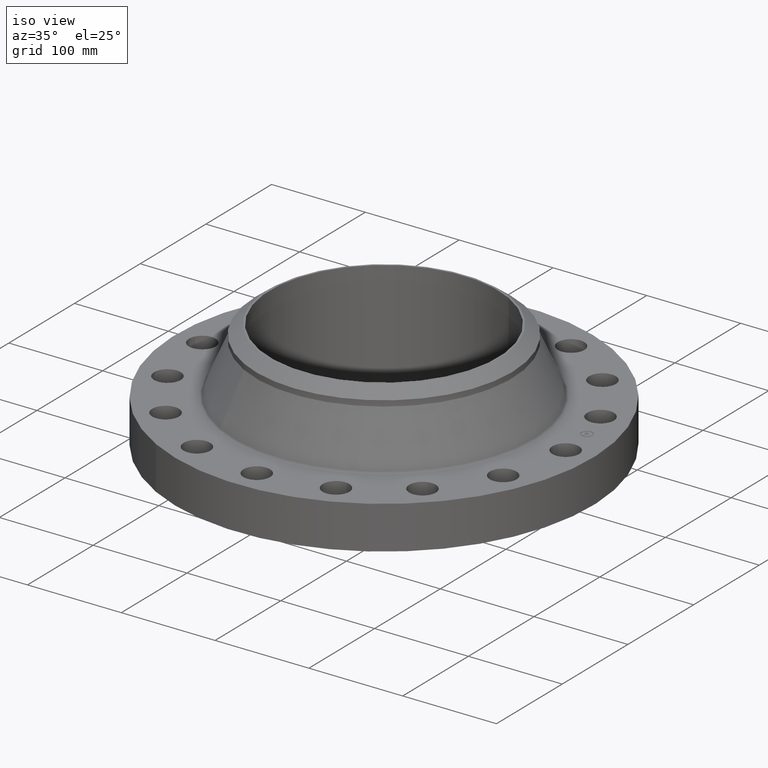
[diagram: clean part render]
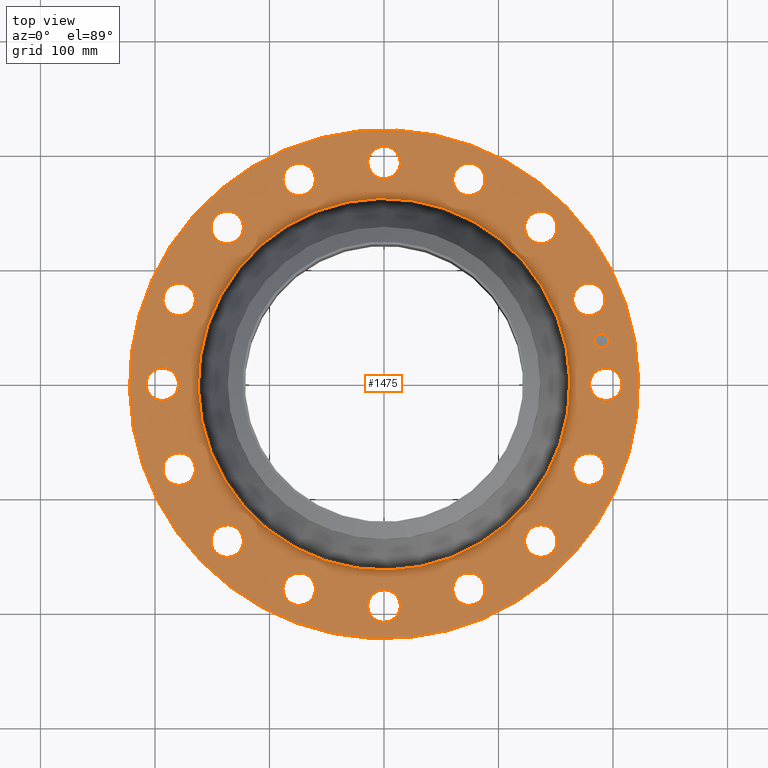
[diagram: tour spotlight — one face highlighted and labeled with its STEP entity id]
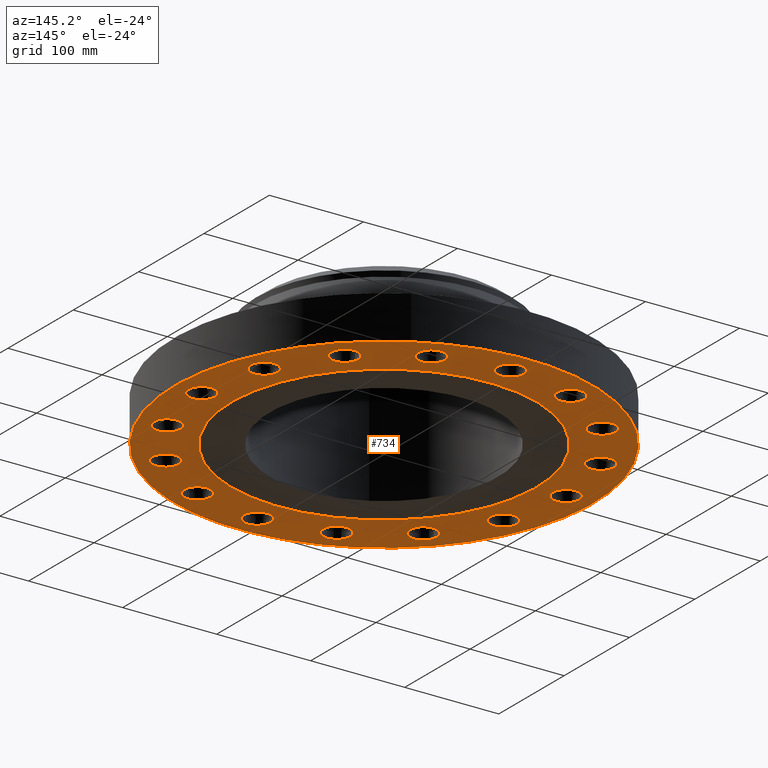
[diagram: tour spotlight — one face highlighted and labeled with its STEP entity id]
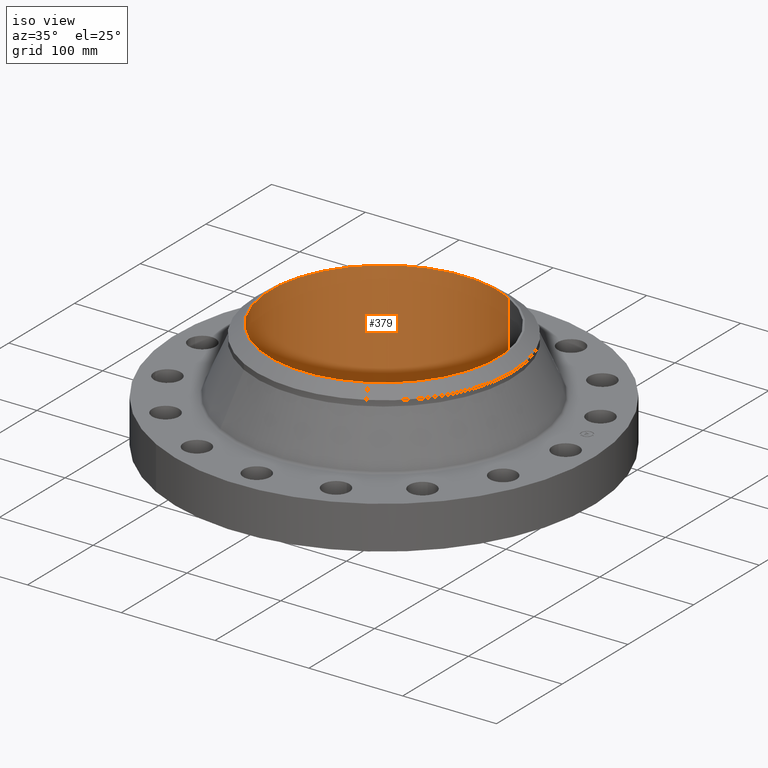
[diagram: tour spotlight — one face highlighted and labeled with its STEP entity id]
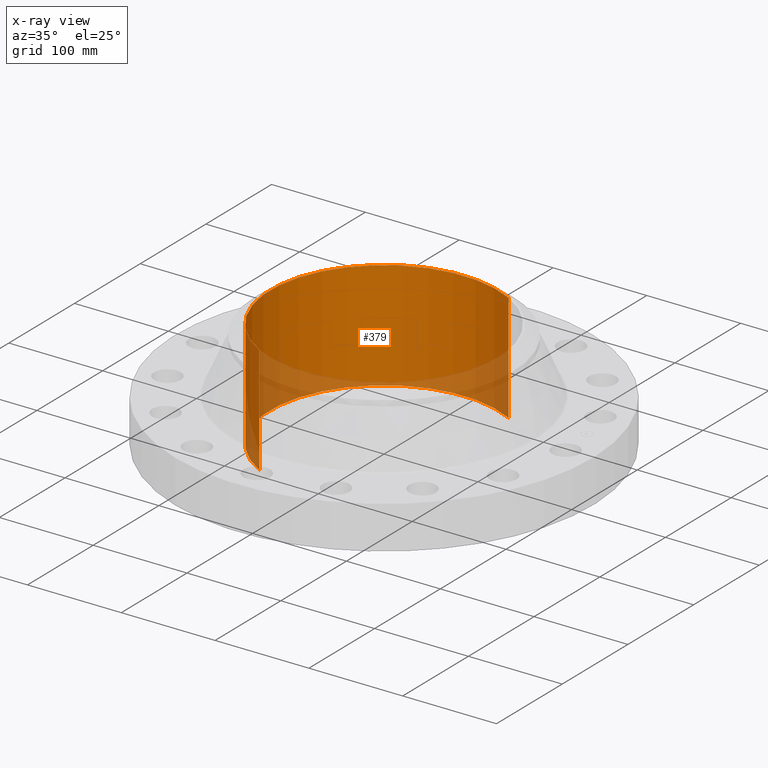
[diagram: x-ray of the same camera — body ghosted, this tour face saturated]
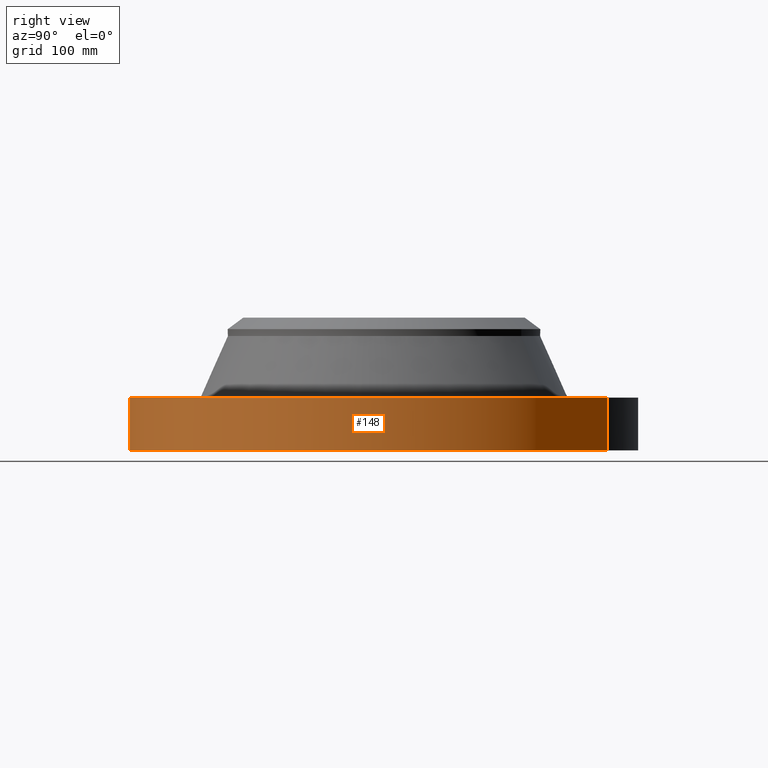
[diagram: tour spotlight — one face highlighted and labeled with its STEP entity id]
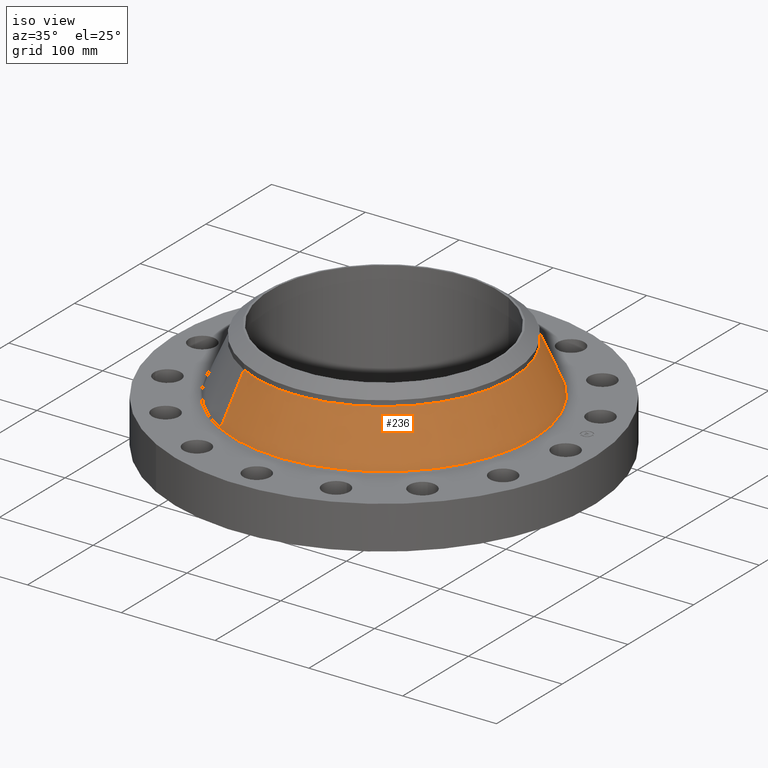
[diagram: tour spotlight — one face highlighted and labeled with its STEP entity id]
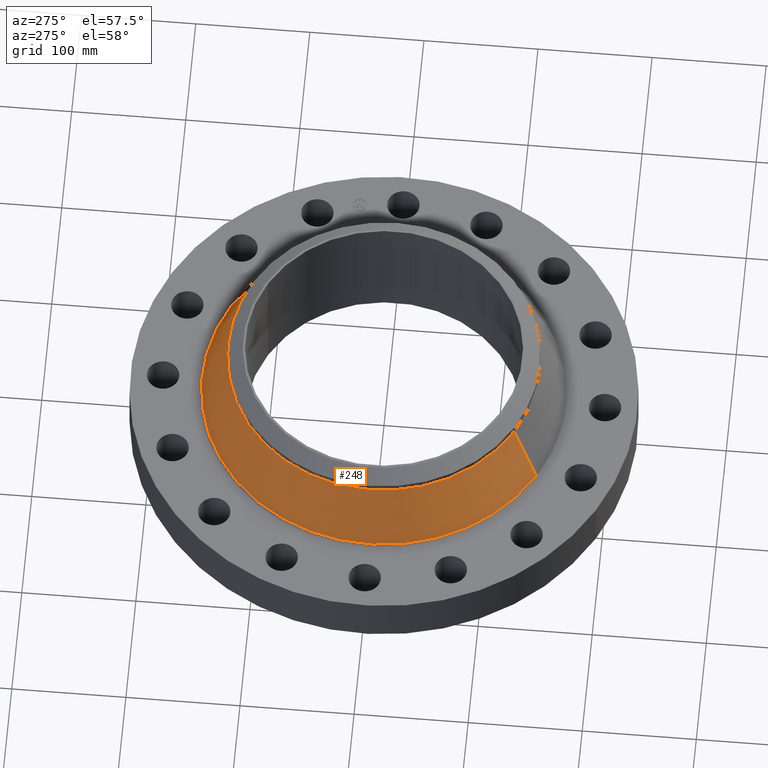
[diagram: tour spotlight — one face highlighted and labeled with its STEP entity id]
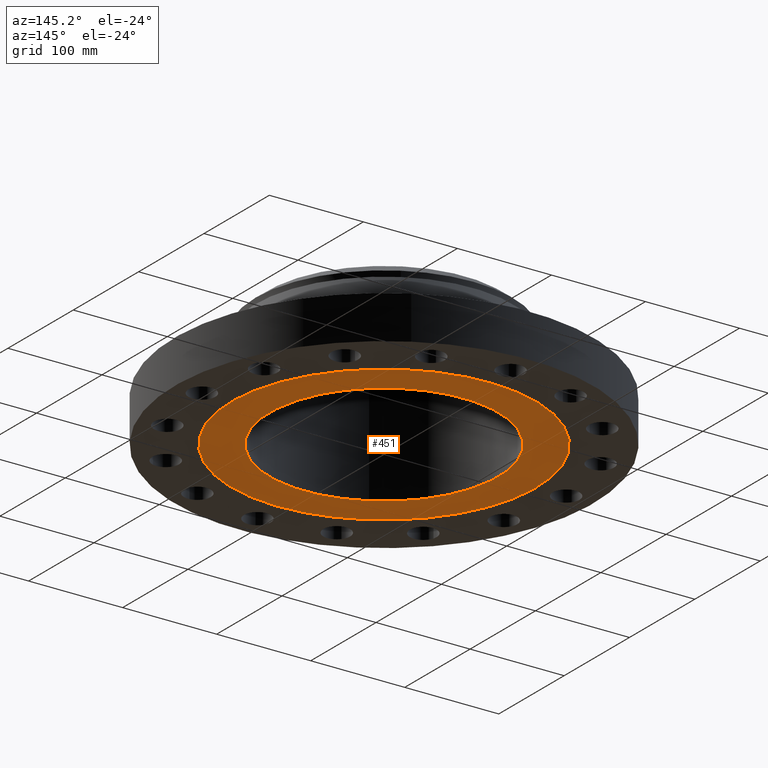
[diagram: tour spotlight — one face highlighted and labeled with its STEP entity id]
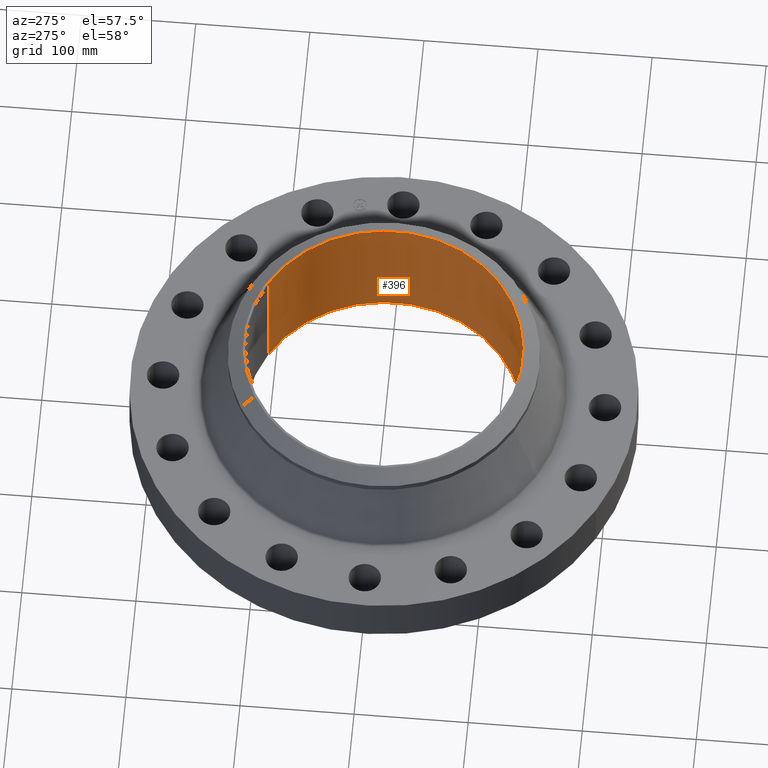
[diagram: tour spotlight — one face highlighted and labeled with its STEP entity id]
A machine part: a face-by-face anatomy tour. The part has 433 B-rep faces; the first image is the clean iso view, then the 8 largest visible faces are spotlighted one at a time (largest first), each with its STEP entity span.

Face 1 — top view, entity #1475. In plain terms, the highlighted planar face has unit normal (0, 0, -1).
Definition (entity closure, byte-faithful):
#65=AXIS2_PLACEMENT_3D('Circle Axis2P3D',#63,#64,$) ;
#82=AXIS2_PLACEMENT_3D('Circle Axis2P3D',#80,#81,$) ;
#115=AXIS2_PLACEMENT_3D('Circle Axis2P3D',#113,#114,$) ;
#139=AXIS2_PLACEMENT_3D('Circle Axis2P3D',#137,#138,$) ;
#156=AXIS2_PLACEMENT_3D('Circle Axis2P3D',#154,#155,$) ;
#191=AXIS2_PLACEMENT_3D('Circle Axis2P3D',#189,#190,$) ;
#756=AXIS2_PLACEMENT_3D('Circle Axis2P3D',#754,#755,$) ;
#768=AXIS2_PLACEMENT_3D('Circle Axis2P3D',#766,#767,$) ;
#799=AXIS2_PLACEMENT_3D('Circle Axis2P3D',#797,#798,$) ;
#811=AXIS2_PLACEMENT_3D('Circle Axis2P3D',#809,#810,$) ;
#842=AXIS2_PLACEMENT_3D('Circle Axis2P3D',#840,#841,$) ;
#854=AXIS2_PLACEMENT_3D('Circle Axis2P3D',#852,#853,$) ;
#885=AXIS2_PLACEMENT_3D('Circle Axis2P3D',#883,#884,$) ;
#897=AXIS2_PLACEMENT_3D('Circle Axis2P3D',#895,#896,$) ;
#928=AXIS2_PLACEMENT_3D('Circle Axis2P3D',#926,#927,$) ;
#940=AXIS2_PLACEMENT_3D('Circle Axis2P3D',#938,#939,$) ;
#971=AXIS2_PLACEMENT_3D('Circle Axis2P3D',#969,#970,$) ;
#983=AXIS2_PLACEMENT_3D('Circle Axis2P3D',#981,#982,$) ;
#1014=AXIS2_PLACEMENT_3D('Circle Axis2P3D',#1012,#1013,$) ;
#1026=AXIS2_PLACEMENT_3D('Circle Axis2P3D',#1024,#1025,$) ;
#1057=AXIS2_PLACEMENT_3D('Circle Axis2P3D',#1055,#1056,$) ;
#1069=AXIS2_PLACEMENT_3D('Circle Axis2P3D',#1067,#1068,$) ;
#1100=AXIS2_PLACEMENT_3D('Circle Axis2P3D',#1098,#1099,$) ;
#1112=AXIS2_PLACEMENT_3D('Circle Axis2P3D',#1110,#1111,$) ;
#1143=AXIS2_PLACEMENT_3D('Circle Axis2P3D',#1141,#1142,$) ;
#1155=AXIS2_PLACEMENT_3D('Circle Axis2P3D',#1153,#1154,$) ;
#1186=AXIS2_PLACEMENT_3D('Circle Axis2P3D',#1184,#1185,$) ;
#1198=AXIS2_PLACEMENT_3D('Circle Axis2P3D',#1196,#1197,$) ;
#1229=AXIS2_PLACEMENT_3D('Circle Axis2P3D',#1227,#1228,$) ;
#1241=AXIS2_PLACEMENT_3D('Circle Axis2P3D',#1239,#1240,$) ;
#1272=AXIS2_PLACEMENT_3D('Circle Axis2P3D',#1270,#1271,$) ;
#1284=AXIS2_PLACEMENT_3D('Circle Axis2P3D',#1282,#1283,$) ;
#1315=AXIS2_PLACEMENT_3D('Circle Axis2P3D',#1313,#1314,$) ;
#1327=AXIS2_PLACEMENT_3D('Circle Axis2P3D',#1325,#1326,$) ;
#1358=AXIS2_PLACEMENT_3D('Circle Axis2P3D',#1356,#1357,$) ;
#1370=AXIS2_PLACEMENT_3D('Circle Axis2P3D',#1368,#1369,$) ;
#1383=AXIS2_PLACEMENT_3D('Plane Axis2P3D',#1380,#1381,#1382) ;
#1459=AXIS2_PLACEMENT_3D('Circle Axis2P3D',#1457,#1458,$) ;
#1468=AXIS2_PLACEMENT_3D('Circle Axis2P3D',#1466,#1467,$) ;
#46=CARTESIAN_POINT('Vertex',(7.13355376537,0.268478301619,1.81000000001)) ;
#60=CARTESIAN_POINT('Vertex',(8.11644623469,-0.268478301619,1.81000000001)) ;
#63=CARTESIAN_POINT('Axis2P3D Location',(7.62500000003,0.,1.81000000001)) ;
#80=CARTESIAN_POINT('Axis2P3D Location',(7.62500000003,0.,1.81000000001)) ;
#110=CARTESIAN_POINT('Vertex',(-4.1949734628,-7.67884741657,1.81000000001)) ;
#113=CARTESIAN_POINT('Axis2P3D Location',(0.,0.,1.81000000001)) ;
#117=CARTESIAN_POINT('Vertex',(4.1949734628,7.67884741657,1.81000000001)) ;
#137=CARTESIAN_POINT('Axis2P3D Location',(0.,0.,1.81000000001)) ;
#154=CARTESIAN_POINT('Axis2P3D Location',(0.,0.,1.81000000001)) ;
#158=CARTESIAN_POINT('Vertex',(3.06266830609,5.60617672997,1.81000000001)) ;
#160=CARTESIAN_POINT('Vertex',(-3.06266830609,-5.60617672997,1.81000000001)) ;
#189=CARTESIAN_POINT('Axis2P3D Location',(0.,0.,1.81000000001)) ;
#744=CARTESIAN_POINT('Vertex',(-6.69328651587,2.4818512321,1.81000000001)) ;
#751=CARTESIAN_POINT('Vertex',(-7.39587635498,3.35407111149,1.81000000001)) ;
#754=CARTESIAN_POINT('Axis2P3D Location',(-7.04458143543,2.9179611718,1.81000000001)) ;
#766=CARTESIAN_POINT('Axis2P3D Location',(-7.04458143543,2.9179611718,1.81000000001)) ;
#787=CARTESIAN_POINT('Vertex',(5.23402706913,-4.85434141378,1.81000000001)) ;
#794=CARTESIAN_POINT('Vertex',(5.54935134401,-5.92903699936,1.81000000001)) ;
#797=CARTESIAN_POINT('Axis2P3D Location',(5.39168920657,-5.39168920657,1.81000000001)) ;
#809=CARTESIAN_POINT('Axis2P3D Location',(5.39168920657,-5.39168920657,1.81000000001)) ;
#830=CARTESIAN_POINT('Vertex',(-5.23402706913,4.85434141378,1.81000000001)) ;
#837=CARTESIAN_POINT('Vertex',(-5.54935134401,5.92903699936,1.81000000001)) ;
#840=CARTESIAN_POINT('Axis2P3D Location',(-5.39168920657,5.39168920657,1.81000000001)) ;
#852=CARTESIAN_POINT('Axis2P3D Location',(-5.39168920657,5.39168920657,1.81000000001)) ;
#873=CARTESIAN_POINT('Vertex',(2.97793444768,-6.48780211991,1.81000000001)) ;
#880=CARTESIAN_POINT('Vertex',(2.85798789591,-7.60136075094,1.81000000001)) ;
#883=CARTESIAN_POINT('Axis2P3D Location',(2.9179611718,-7.04458143543,1.81000000001)) ;
#895=CARTESIAN_POINT('Axis2P3D Location',(2.9179611718,-7.04458143543,1.81000000001)) ;
#916=CARTESIAN_POINT('Vertex',(-2.97793444768,6.48780211991,1.81000000001)) ;
#923=CARTESIAN_POINT('Vertex',(-2.85798789591,7.60136075094,1.81000000001)) ;
#926=CARTESIAN_POINT('Axis2P3D Location',(-2.9179611718,7.04458143543,1.81000000001)) ;
#938=CARTESIAN_POINT('Axis2P3D Location',(-2.9179611718,7.04458143543,1.81000000001)) ;
#959=CARTESIAN_POINT('Vertex',(0.268478301619,-7.13355376537,1.81000000001)) ;
#966=CARTESIAN_POINT('Vertex',(-0.268478301619,-8.11644623469,1.81000000001)) ;
#969=CARTESIAN_POINT('Axis2P3D Location',(-6.52068346028E-016,-7.62500000003,1.81000000001)) ;
#981=CARTESIAN_POINT('Axis2P3D Location',(-6.52068346028E-016,-7.62500000003,1.81000000001)) ;
#1002=CARTESIAN_POINT('Vertex',(-0.268478301619,7.13355376537,1.81000000001)) ;
#1009=CARTESIAN_POINT('Vertex',(0.268478301619,8.11644623469,1.81000000001)) ;
#1012=CARTESIAN_POINT('Axis2P3D Location',(-2.81724838326E-016,7.62500000003,1.81000000001)) ;
#1024=CARTESIAN_POINT('Axis2P3D Location',(-2.81724838326E-016,7.62500000003,1.81000000001)) ;
#1045=CARTESIAN_POINT('Vertex',(-2.4818512321,-6.69328651587,1.81000000001)) ;
#1052=CARTESIAN_POINT('Vertex',(-3.35407111149,-7.39587635498,1.81000000001)) ;
#1055=CARTESIAN_POINT('Axis2P3D Location',(-2.9179611718,-7.04458143543,1.81000000001)) ;
#1067=CARTESIAN_POINT('Axis2P3D Location',(-2.9179611718,-7.04458143543,1.81000000001)) ;
#1088=CARTESIAN_POINT('Vertex',(2.4818512321,6.69328651587,1.81000000001)) ;
#1095=CARTESIAN_POINT('Vertex',(3.35407111149,7.39587635498,1.81000000001)) ;
#1098=CARTESIAN_POINT('Axis2P3D Location',(2.9179611718,7.04458143543,1.81000000001)) ;
#1110=CARTESIAN_POINT('Axis2P3D Location',(2.9179611718,7.04458143543,1.81000000001)) ;
#1131=CARTESIAN_POINT('Vertex',(-4.85434141378,-5.23402706913,1.81000000001)) ;
#1138=CARTESIAN_POINT('Vertex',(-5.92903699936,-5.54935134401,1.81000000001)) ;
#1141=CARTESIAN_POINT('Axis2P3D Location',(-5.39168920657,-5.39168920657,1.81000000001)) ;
#1153=CARTESIAN_POINT('Axis2P3D Location',(-5.39168920657,-5.39168920657,1.81000000001)) ;
#1174=CARTESIAN_POINT('Vertex',(4.85434141378,5.23402706913,1.81000000001)) ;
#1181=CARTESIAN_POINT('Vertex',(5.92903699936,5.54935134401,1.81000000001)) ;
#1184=CARTESIAN_POINT('Axis2P3D Location',(5.39168920657,5.39168920657,1.81000000001)) ;
#1196=CARTESIAN_POINT('Axis2P3D Location',(5.39168920657,5.39168920657,1.81000000001)) ;
#1217=CARTESIAN_POINT('Vertex',(-6.48780211991,-2.97793444768,1.81000000001)) ;
#1224=CARTESIAN_POINT('Vertex',(-7.60136075094,-2.85798789591,1.81000000001)) ;
#1227=CARTESIAN_POINT('Axis2P3D Location',(-7.04458143543,-2.9179611718,1.81000000001)) ;
#1239=CARTESIAN_POINT('Axis2P3D Location',(-7.04458143543,-2.9179611718,1.81000000001)) ;
#1260=CARTESIAN_POINT('Vertex',(6.48780211991,2.97793444768,1.81000000001)) ;
#1267=CARTESIAN_POINT('Vertex',(7.60136075094,2.85798789591,1.81000000001)) ;
#1270=CARTESIAN_POINT('Axis2P3D Location',(7.04458143543,2.9179611718,1.81000000001)) ;
#1282=CARTESIAN_POINT('Axis2P3D Location',(7.04458143543,2.9179611718,1.81000000001)) ;
#1303=CARTESIAN_POINT('Vertex',(-7.13355376537,-0.268478301619,1.81000000001)) ;
#1310=CARTESIAN_POINT('Vertex',(-8.11644623469,0.268478301619,1.81000000001)) ;
#1313=CARTESIAN_POINT('Axis2P3D Location',(-7.62500000003,-9.33793184354E-016,1.81000000001)) ;
#1325=CARTESIAN_POINT('Axis2P3D Location',(-7.62500000003,-9.33793184354E-016,1.81000000001)) ;
#1346=CARTESIAN_POINT('Vertex',(6.69328651587,-2.4818512321,1.81000000001)) ;
#1353=CARTESIAN_POINT('Vertex',(7.39587635498,-3.35407111149,1.81000000001)) ;
#1356=CARTESIAN_POINT('Axis2P3D Location',(7.04458143543,-2.9179611718,1.81000000001)) ;
#1368=CARTESIAN_POINT('Axis2P3D Location',(7.04458143543,-2.9179611718,1.81000000001)) ;
#1380=CARTESIAN_POINT('Axis2P3D Location',(0.,8.75000000004,1.81000000001)) ;
#1457=CARTESIAN_POINT('Axis2P3D Location',(7.4784877631,1.48756370538,1.81000000001)) ;
#1461=CARTESIAN_POINT('Vertex',(7.43020290841,1.73030806228,1.81000000001)) ;
#1463=CARTESIAN_POINT('Vertex',(7.5267726178,1.24481934848,1.81000000001)) ;
#1466=CARTESIAN_POINT('Axis2P3D Location',(7.4784877631,1.48756370538,1.81000000001)) ;
#64=DIRECTION('Axis2P3D Direction',(0.,-0.,-0.0393700787402)) ;
#81=DIRECTION('Axis2P3D Direction',(0.,-0.,-0.0393700787402)) ;
#114=DIRECTION('Axis2P3D Direction',(0.,0.,-0.0393700787402)) ;
#138=DIRECTION('Axis2P3D Direction',(0.,0.,-0.0393700787402)) ;
#155=DIRECTION('Axis2P3D Direction',(0.,0.,-0.0393700787402)) ;
#190=DIRECTION('Axis2P3D Direction',(0.,0.,-0.0393700787402)) ;
#755=DIRECTION('Axis2P3D Direction',(0.,0.,-0.0393700787402)) ;
#767=DIRECTION('Axis2P3D Direction',(0.,0.,-0.0393700787402)) ;
#798=DIRECTION('Axis2P3D Direction',(0.,-0.,-0.0393700787402)) ;
#810=DIRECTION('Axis2P3D Direction',(0.,-0.,-0.0393700787402)) ;
#841=DIRECTION('Axis2P3D Direction',(0.,0.,-0.0393700787402)) ;
#853=DIRECTION('Axis2P3D Direction',(0.,0.,-0.0393700787402)) ;
#884=DIRECTION('Axis2P3D Direction',(0.,-0.,-0.0393700787402)) ;
#896=DIRECTION('Axis2P3D Direction',(0.,-0.,-0.0393700787402)) ;
#927=DIRECTION('Axis2P3D Direction',(0.,0.,-0.0393700787402)) ;
#939=DIRECTION('Axis2P3D Direction',(0.,0.,-0.0393700787402)) ;
#970=DIRECTION('Axis2P3D Direction',(0.,-0.,-0.0393700787402)) ;
#982=DIRECTION('Axis2P3D Direction',(0.,-0.,-0.0393700787402)) ;
#1013=DIRECTION('Axis2P3D Direction',(0.,0.,-0.0393700787402)) ;
#1025=DIRECTION('Axis2P3D Direction',(0.,0.,-0.0393700787402)) ;
#1056=DIRECTION('Axis2P3D Direction',(-0.,0.,-0.0393700787402)) ;
#1068=DIRECTION('Axis2P3D Direction',(-0.,0.,-0.0393700787402)) ;
#1099=DIRECTION('Axis2P3D Direction',(0.,0.,-0.0393700787402)) ;
#1111=DIRECTION('Axis2P3D Direction',(0.,0.,-0.0393700787402)) ;
#1142=DIRECTION('Axis2P3D Direction',(-0.,0.,-0.0393700787402)) ;
#1154=DIRECTION('Axis2P3D Direction',(-0.,0.,-0.0393700787402)) ;
#1185=DIRECTION('Axis2P3D Direction',(0.,0.,-0.0393700787402)) ;
#1197=DIRECTION('Axis2P3D Direction',(0.,0.,-0.0393700787402)) ;
#1228=DIRECTION('Axis2P3D Direction',(-0.,0.,-0.0393700787402)) ;
#1240=DIRECTION('Axis2P3D Direction',(-0.,0.,-0.0393700787402)) ;
#1271=DIRECTION('Axis2P3D Direction',(0.,0.,-0.0393700787402)) ;
#1283=DIRECTION('Axis2P3D Direction',(0.,0.,-0.0393700787402)) ;
#1314=DIRECTION('Axis2P3D Direction',(-0.,0.,-0.0393700787402)) ;
#1326=DIRECTION('Axis2P3D Direction',(-0.,0.,-0.0393700787402)) ;
#1357=DIRECTION('Axis2P3D Direction',(0.,-0.,-0.0393700787402)) ;
#1369=DIRECTION('Axis2P3D Direction',(0.,-0.,-0.0393700787402)) ;
#1381=DIRECTION('Axis2P3D Direction',(0.,0.,-0.0393700787402)) ;
#1382=DIRECTION('Axis2P3D XDirection',(0.0393700787402,0.,0.)) ;
#1458=DIRECTION('Axis2P3D Direction',(0.,0.,-0.0393700787402)) ;
#1467=DIRECTION('Axis2P3D Direction',(0.,0.,-0.0393700787402)) ;
#1386=ORIENTED_EDGE('',*,*,#141,.F.) ;
#1387=ORIENTED_EDGE('',*,*,#119,.F.) ;
#1390=ORIENTED_EDGE('',*,*,#67,.T.) ;
#1391=ORIENTED_EDGE('',*,*,#84,.T.) ;
#1394=ORIENTED_EDGE('',*,*,#193,.T.) ;
#1395=ORIENTED_EDGE('',*,*,#162,.T.) ;
#1398=ORIENTED_EDGE('',*,*,#1372,.T.) ;
#1399=ORIENTED_EDGE('',*,*,#1360,.T.) ;
#1402=ORIENTED_EDGE('',*,*,#813,.T.) ;
#1403=ORIENTED_EDGE('',*,*,#801,.T.) ;
#1406=ORIENTED_EDGE('',*,*,#899,.T.) ;
#1407=ORIENTED_EDGE('',*,*,#887,.T.) ;
#1410=ORIENTED_EDGE('',*,*,#985,.T.) ;
#1411=ORIENTED_EDGE('',*,*,#973,.T.) ;
#1414=ORIENTED_EDGE('',*,*,#1071,.T.) ;
#1415=ORIENTED_EDGE('',*,*,#1059,.T.) ;
#1418=ORIENTED_EDGE('',*,*,#1157,.T.) ;
#1419=ORIENTED_EDGE('',*,*,#1145,.T.) ;
#1422=ORIENTED_EDGE('',*,*,#1243,.T.) ;
#1423=ORIENTED_EDGE('',*,*,#1231,.T.) ;
#1426=ORIENTED_EDGE('',*,*,#1329,.T.) ;
#1427=ORIENTED_EDGE('',*,*,#1317,.T.) ;
#1430=ORIENTED_EDGE('',*,*,#770,.T.) ;
#1431=ORIENTED_EDGE('',*,*,#758,.T.) ;
#1434=ORIENTED_EDGE('',*,*,#856,.T.) ;
#1435=ORIENTED_EDGE('',*,*,#844,.T.) ;
#1438=ORIENTED_EDGE('',*,*,#942,.T.) ;
#1439=ORIENTED_EDGE('',*,*,#930,.T.) ;
#1442=ORIENTED_EDGE('',*,*,#1028,.T.) ;
#1443=ORIENTED_EDGE('',*,*,#1016,.T.) ;
#1446=ORIENTED_EDGE('',*,*,#1114,.T.) ;
#1447=ORIENTED_EDGE('',*,*,#1102,.T.) ;
#1450=ORIENTED_EDGE('',*,*,#1200,.T.) ;
#1451=ORIENTED_EDGE('',*,*,#1188,.T.) ;
#1454=ORIENTED_EDGE('',*,*,#1286,.T.) ;
#1455=ORIENTED_EDGE('',*,*,#1274,.T.) ;
#1472=ORIENTED_EDGE('',*,*,#1465,.T.) ;
#1473=ORIENTED_EDGE('',*,*,#1470,.T.) ;
#1392=FACE_BOUND('',#1389,.T.) ;
#1396=FACE_BOUND('',#1393,.T.) ;
#1400=FACE_BOUND('',#1397,.T.) ;
#1404=FACE_BOUND('',#1401,.T.) ;
#1408=FACE_BOUND('',#1405,.T.) ;
#1412=FACE_BOUND('',#1409,.T.) ;
#1416=FACE_BOUND('',#1413,.T.) ;
#1420=FACE_BOUND('',#1417,.T.) ;
#1424=FACE_BOUND('',#1421,.T.) ;
#1428=FACE_BOUND('',#1425,.T.) ;
#1432=FACE_BOUND('',#1429,.T.) ;
#1436=FACE_BOUND('',#1433,.T.) ;
#1440=FACE_BOUND('',#1437,.T.) ;
#1444=FACE_BOUND('',#1441,.T.) ;
#1448=FACE_BOUND('',#1445,.T.) ;
#1452=FACE_BOUND('',#1449,.T.) ;
#1456=FACE_BOUND('',#1453,.T.) ;
#1474=FACE_BOUND('',#1471,.T.) ;
#1475=ADVANCED_FACE('PartBody',(#1388,#1392,#1396,#1400,#1404,#1408,#1412,#1416,#1420,#1424,#1428,#1432,#1436,#1440,#1444,#1448,#1452,#1456,#1474),#1384,.F.) ;
#66=CIRCLE('generated circle',#65,0.560000000002) ;
#83=CIRCLE('generated circle',#82,0.560000000002) ;
#116=CIRCLE('generated circle',#115,8.75000000003) ;
#140=CIRCLE('generated circle',#139,8.75000000003) ;
#157=CIRCLE('generated circle',#156,6.38820433931) ;
#192=CIRCLE('generated circle',#191,6.38820433931) ;
#757=CIRCLE('generated circle',#756,0.560000000002) ;
#769=CIRCLE('generated circle',#768,0.560000000002) ;
#800=CIRCLE('generated circle',#799,0.560000000002) ;
#812=CIRCLE('generated circle',#811,0.560000000002) ;
#843=CIRCLE('generated circle',#842,0.560000000002) ;
#855=CIRCLE('generated circle',#854,0.560000000002) ;
#886=CIRCLE('generated circle',#885,0.560000000002) ;
#898=CIRCLE('generated circle',#897,0.560000000002) ;
#929=CIRCLE('generated circle',#928,0.560000000002) ;
#941=CIRCLE('generated circle',#940,0.560000000002) ;
#972=CIRCLE('generated circle',#971,0.560000000002) ;
#984=CIRCLE('generated circle',#983,0.560000000002) ;
#1015=CIRCLE('generated circle',#1014,0.560000000002) ;
#1027=CIRCLE('generated circle',#1026,0.560000000002) ;
#1058=CIRCLE('generated circle',#1057,0.560000000002) ;
#1070=CIRCLE('generated circle',#1069,0.560000000002) ;
#1101=CIRCLE('generated circle',#1100,0.560000000002) ;
#1113=CIRCLE('generated circle',#1112,0.560000000002) ;
#1144=CIRCLE('generated circle',#1143,0.560000000002) ;
#1156=CIRCLE('generated circle',#1155,0.560000000002) ;
#1187=CIRCLE('generated circle',#1186,0.560000000002) ;
#1199=CIRCLE('generated circle',#1198,0.560000000002) ;
#1230=CIRCLE('generated circle',#1229,0.560000000002) ;
#1242=CIRCLE('generated circle',#1241,0.560000000002) ;
#1273=CIRCLE('generated circle',#1272,0.560000000002) ;
#1285=CIRCLE('generated circle',#1284,0.560000000002) ;
#1316=CIRCLE('generated circle',#1315,0.560000000002) ;
#1328=CIRCLE('generated circle',#1327,0.560000000002) ;
#1359=CIRCLE('generated circle',#1358,0.560000000002) ;
#1371=CIRCLE('generated circle',#1370,0.560000000002) ;
#1460=CIRCLE('generated circle',#1459,0.247500000001) ;
#1469=CIRCLE('generated circle',#1468,0.247500000001) ;
#67=EDGE_CURVE('',#47,#61,#66,.T.) ;
#84=EDGE_CURVE('',#61,#47,#83,.T.) ;
#119=EDGE_CURVE('',#111,#118,#116,.T.) ;
#141=EDGE_CURVE('',#118,#111,#140,.T.) ;
#162=EDGE_CURVE('',#159,#161,#157,.T.) ;
#193=EDGE_CURVE('',#161,#159,#192,.T.) ;
#758=EDGE_CURVE('',#745,#752,#757,.T.) ;
#770=EDGE_CURVE('',#752,#745,#769,.T.) ;
#801=EDGE_CURVE('',#788,#795,#800,.T.) ;
#813=EDGE_CURVE('',#795,#788,#812,.T.) ;
#844=EDGE_CURVE('',#831,#838,#843,.T.) ;
#856=EDGE_CURVE('',#838,#831,#855,.T.) ;
#887=EDGE_CURVE('',#874,#881,#886,.T.) ;
#899=EDGE_CURVE('',#881,#874,#898,.T.) ;
#930=EDGE_CURVE('',#917,#924,#929,.T.) ;
#942=EDGE_CURVE('',#924,#917,#941,.T.) ;
#973=EDGE_CURVE('',#960,#967,#972,.T.) ;
#985=EDGE_CURVE('',#967,#960,#984,.T.) ;
#1016=EDGE_CURVE('',#1003,#1010,#1015,.T.) ;
#1028=EDGE_CURVE('',#1010,#1003,#1027,.T.) ;
#1059=EDGE_CURVE('',#1046,#1053,#1058,.T.) ;
#1071=EDGE_CURVE('',#1053,#1046,#1070,.T.) ;
#1102=EDGE_CURVE('',#1089,#1096,#1101,.T.) ;
#1114=EDGE_CURVE('',#1096,#1089,#1113,.T.) ;
#1145=EDGE_CURVE('',#1132,#1139,#1144,.T.) ;
#1157=EDGE_CURVE('',#1139,#1132,#1156,.T.) ;
#1188=EDGE_CURVE('',#1175,#1182,#1187,.T.) ;
#1200=EDGE_CURVE('',#1182,#1175,#1199,.T.) ;
#1231=EDGE_CURVE('',#1218,#1225,#1230,.T.) ;
#1243=EDGE_CURVE('',#1225,#1218,#1242,.T.) ;
#1274=EDGE_CURVE('',#1261,#1268,#1273,.T.) ;
#1286=EDGE_CURVE('',#1268,#1261,#1285,.T.) ;
#1317=EDGE_CURVE('',#1304,#1311,#1316,.T.) ;
#1329=EDGE_CURVE('',#1311,#1304,#1328,.T.) ;
#1360=EDGE_CURVE('',#1347,#1354,#1359,.T.) ;
#1372=EDGE_CURVE('',#1354,#1347,#1371,.T.) ;
#1465=EDGE_CURVE('',#1462,#1464,#1460,.T.) ;
#1470=EDGE_CURVE('',#1464,#1462,#1469,.T.) ;
#1385=EDGE_LOOP('',(#1386,#1387)) ;
#1389=EDGE_LOOP('',(#1390,#1391)) ;
#1393=EDGE_LOOP('',(#1394,#1395)) ;
#1397=EDGE_LOOP('',(#1398,#1399)) ;
#1401=EDGE_LOOP('',(#1402,#1403)) ;
#1405=EDGE_LOOP('',(#1406,#1407)) ;
#1409=EDGE_LOOP('',(#1410,#1411)) ;
#1413=EDGE_LOOP('',(#1414,#1415)) ;
#1417=EDGE_LOOP('',(#1418,#1419)) ;
#1421=EDGE_LOOP('',(#1422,#1423)) ;
#1425=EDGE_LOOP('',(#1426,#1427)) ;
#1429=EDGE_LOOP('',(#1430,#1431)) ;
#1433=EDGE_LOOP('',(#1434,#1435)) ;
#1437=EDGE_LOOP('',(#1438,#1439)) ;
#1441=EDGE_LOOP('',(#1442,#1443)) ;
#1445=EDGE_LOOP('',(#1446,#1447)) ;
#1449=EDGE_LOOP('',(#1450,#1451)) ;
#1453=EDGE_LOOP('',(#1454,#1455)) ;
#1471=EDGE_LOOP('',(#1472,#1473)) ;
#1388=FACE_OUTER_BOUND('',#1385,.T.) ;
#1384=PLANE('',#1383) ;
#47=VERTEX_POINT('',#46) ;
#61=VERTEX_POINT('',#60) ;
#111=VERTEX_POINT('',#110) ;
#118=VERTEX_POINT('',#117) ;
#159=VERTEX_POINT('',#158) ;
#161=VERTEX_POINT('',#160) ;
#745=VERTEX_POINT('',#744) ;
#752=VERTEX_POINT('',#751) ;
#788=VERTEX_POINT('',#787) ;
#795=VERTEX_POINT('',#794) ;
#831=VERTEX_POINT('',#830) ;
#838=VERTEX_POINT('',#837) ;
#874=VERTEX_POINT('',#873) ;
#881=VERTEX_POINT('',#880) ;
#917=VERTEX_POINT('',#916) ;
#924=VERTEX_POINT('',#923) ;
#960=VERTEX_POINT('',#959) ;
#967=VERTEX_POINT('',#966) ;
#1003=VERTEX_POINT('',#1002) ;
#1010=VERTEX_POINT('',#1009) ;
#1046=VERTEX_POINT('',#1045) ;
#1053=VERTEX_POINT('',#1052) ;
#1089=VERTEX_POINT('',#1088) ;
#1096=VERTEX_POINT('',#1095) ;
#1132=VERTEX_POINT('',#1131) ;
#1139=VERTEX_POINT('',#1138) ;
#1175=VERTEX_POINT('',#1174) ;
#1182=VERTEX_POINT('',#1181) ;
#1218=VERTEX_POINT('',#1217) ;
#1225=VERTEX_POINT('',#1224) ;
#1261=VERTEX_POINT('',#1260) ;
#1268=VERTEX_POINT('',#1267) ;
#1304=VERTEX_POINT('',#1303) ;
#1311=VERTEX_POINT('',#1310) ;
#1347=VERTEX_POINT('',#1346) ;
#1354=VERTEX_POINT('',#1353) ;
#1462=VERTEX_POINT('',#1461) ;
#1464=VERTEX_POINT('',#1463) ;

Face 2 — auxiliary view, entity #734. In plain terms, the highlighted planar face has unit normal (0, 0, -1).
Definition (entity closure, byte-faithful):
#51=AXIS2_PLACEMENT_3D('Circle Axis2P3D',#49,#50,$) ;
#77=AXIS2_PLACEMENT_3D('Circle Axis2P3D',#75,#76,$) ;
#99=AXIS2_PLACEMENT_3D('Circle Axis2P3D',#97,#98,$) ;
#134=AXIS2_PLACEMENT_3D('Circle Axis2P3D',#132,#133,$) ;
#427=AXIS2_PLACEMENT_3D('Plane Axis2P3D',#424,#425,#426) ;
#431=AXIS2_PLACEMENT_3D('Circle Axis2P3D',#429,#430,$) ;
#440=AXIS2_PLACEMENT_3D('Circle Axis2P3D',#438,#439,$) ;
#466=AXIS2_PLACEMENT_3D('Circle Axis2P3D',#464,#465,$) ;
#475=AXIS2_PLACEMENT_3D('Circle Axis2P3D',#473,#474,$) ;
#484=AXIS2_PLACEMENT_3D('Circle Axis2P3D',#482,#483,$) ;
#493=AXIS2_PLACEMENT_3D('Circle Axis2P3D',#491,#492,$) ;
#502=AXIS2_PLACEMENT_3D('Circle Axis2P3D',#500,#501,$) ;
#511=AXIS2_PLACEMENT_3D('Circle Axis2P3D',#509,#510,$) ;
#520=AXIS2_PLACEMENT_3D('Circle Axis2P3D',#518,#519,$) ;
#529=AXIS2_PLACEMENT_3D('Circle Axis2P3D',#527,#528,$) ;
#538=AXIS2_PLACEMENT_3D('Circle Axis2P3D',#536,#537,$) ;
#547=AXIS2_PLACEMENT_3D('Circle Axis2P3D',#545,#546,$) ;
#556=AXIS2_PLACEMENT_3D('Circle Axis2P3D',#554,#555,$) ;
#565=AXIS2_PLACEMENT_3D('Circle Axis2P3D',#563,#564,$) ;
#574=AXIS2_PLACEMENT_3D('Circle Axis2P3D',#572,#573,$) ;
#583=AXIS2_PLACEMENT_3D('Circle Axis2P3D',#581,#582,$) ;
#592=AXIS2_PLACEMENT_3D('Circle Axis2P3D',#590,#591,$) ;
#601=AXIS2_PLACEMENT_3D('Circle Axis2P3D',#599,#600,$) ;
#610=AXIS2_PLACEMENT_3D('Circle Axis2P3D',#608,#609,$) ;
#619=AXIS2_PLACEMENT_3D('Circle Axis2P3D',#617,#618,$) ;
#628=AXIS2_PLACEMENT_3D('Circle Axis2P3D',#626,#627,$) ;
#637=AXIS2_PLACEMENT_3D('Circle Axis2P3D',#635,#636,$) ;
#646=AXIS2_PLACEMENT_3D('Circle Axis2P3D',#644,#645,$) ;
#655=AXIS2_PLACEMENT_3D('Circle Axis2P3D',#653,#654,$) ;
#664=AXIS2_PLACEMENT_3D('Circle Axis2P3D',#662,#663,$) ;
#673=AXIS2_PLACEMENT_3D('Circle Axis2P3D',#671,#672,$) ;
#682=AXIS2_PLACEMENT_3D('Circle Axis2P3D',#680,#681,$) ;
#691=AXIS2_PLACEMENT_3D('Circle Axis2P3D',#689,#690,$) ;
#700=AXIS2_PLACEMENT_3D('Circle Axis2P3D',#698,#699,$) ;
#709=AXIS2_PLACEMENT_3D('Circle Axis2P3D',#707,#708,$) ;
#718=AXIS2_PLACEMENT_3D('Circle Axis2P3D',#716,#717,$) ;
#727=AXIS2_PLACEMENT_3D('Circle Axis2P3D',#725,#726,$) ;
#44=CARTESIAN_POINT('Vertex',(7.13355376537,0.268478301619,0.)) ;
#49=CARTESIAN_POINT('Axis2P3D Location',(7.62500000003,0.,0.)) ;
#53=CARTESIAN_POINT('Vertex',(8.11644623469,-0.268478301619,0.)) ;
#75=CARTESIAN_POINT('Axis2P3D Location',(7.62500000003,0.,0.)) ;
#97=CARTESIAN_POINT('Axis2P3D Location',(0.,0.,8.39223703654E-016)) ;
#101=CARTESIAN_POINT('Vertex',(-4.1949734628,-7.67884741657,8.39223703654E-016)) ;
#103=CARTESIAN_POINT('Vertex',(4.1949734628,7.67884741657,8.39223703654E-016)) ;
#132=CARTESIAN_POINT('Axis2P3D Location',(0.,0.,8.39223703654E-016)) ;
#424=CARTESIAN_POINT('Axis2P3D Location',(0.,4.78100000002,0.)) ;
#429=CARTESIAN_POINT('Axis2P3D Location',(0.,0.,0.)) ;
#433=CARTESIAN_POINT('Vertex',(-3.05633780861,-5.59458883207,0.)) ;
#435=CARTESIAN_POINT('Vertex',(3.05633780861,5.59458883207,0.)) ;
#438=CARTESIAN_POINT('Axis2P3D Location',(0.,0.,0.)) ;
#464=CARTESIAN_POINT('Axis2P3D Location',(7.04458143543,-2.9179611718,0.)) ;
#468=CARTESIAN_POINT('Vertex',(6.69328651587,-2.4818512321,0.)) ;
#470=CARTESIAN_POINT('Vertex',(7.39587635498,-3.35407111149,0.)) ;
#473=CARTESIAN_POINT('Axis2P3D Location',(7.04458143543,-2.9179611718,0.)) ;
#482=CARTESIAN_POINT('Axis2P3D Location',(5.39168920657,-5.39168920657,0.)) ;
#486=CARTESIAN_POINT('Vertex',(5.23402706913,-4.85434141378,0.)) ;
#488=CARTESIAN_POINT('Vertex',(5.54935134401,-5.92903699936,0.)) ;
#491=CARTESIAN_POINT('Axis2P3D Location',(5.39168920657,-5.39168920657,0.)) ;
#500=CARTESIAN_POINT('Axis2P3D Location',(2.9179611718,-7.04458143543,0.)) ;
#504=CARTESIAN_POINT('Vertex',(2.97793444768,-6.48780211991,0.)) ;
#506=CARTESIAN_POINT('Vertex',(2.85798789591,-7.60136075094,0.)) ;
#509=CARTESIAN_POINT('Axis2P3D Location',(2.9179611718,-7.04458143543,0.)) ;
#518=CARTESIAN_POINT('Axis2P3D Location',(-1.88825333322E-015,-7.62500000003,0.)) ;
#522=CARTESIAN_POINT('Vertex',(0.268478301619,-7.13355376537,0.)) ;
#524=CARTESIAN_POINT('Vertex',(-0.268478301619,-8.11644623469,0.)) ;
#527=CARTESIAN_POINT('Axis2P3D Location',(4.89547160465E-016,-7.62500000003,0.)) ;
#536=CARTESIAN_POINT('Axis2P3D Location',(-2.9179611718,-7.04458143543,0.)) ;
#540=CARTESIAN_POINT('Vertex',(-2.4818512321,-6.69328651587,0.)) ;
#542=CARTESIAN_POINT('Vertex',(-3.35407111149,-7.39587635498,0.)) ;
#545=CARTESIAN_POINT('Axis2P3D Location',(-2.9179611718,-7.04458143543,0.)) ;
#554=CARTESIAN_POINT('Axis2P3D Location',(-5.39168920657,-5.39168920657,0.)) ;
#558=CARTESIAN_POINT('Vertex',(-4.85434141378,-5.23402706913,0.)) ;
#560=CARTESIAN_POINT('Vertex',(-5.92903699936,-5.54935134401,0.)) ;
#563=CARTESIAN_POINT('Axis2P3D Location',(-5.39168920657,-5.39168920657,0.)) ;
#572=CARTESIAN_POINT('Axis2P3D Location',(-7.04458143543,-2.9179611718,0.)) ;
#576=CARTESIAN_POINT('Vertex',(-6.48780211991,-2.97793444768,0.)) ;
#578=CARTESIAN_POINT('Vertex',(-7.60136075094,-2.85798789591,0.)) ;
#581=CARTESIAN_POINT('Axis2P3D Location',(-7.04458143543,-2.9179611718,0.)) ;
#590=CARTESIAN_POINT('Axis2P3D Location',(-7.62500000003,-1.67844740731E-015,0.)) ;
#594=CARTESIAN_POINT('Vertex',(-7.13355376537,-0.268478301619,0.)) ;
#596=CARTESIAN_POINT('Vertex',(-8.11644623469,0.268478301619,0.)) ;
#599=CARTESIAN_POINT('Axis2P3D Location',(-7.62500000003,-1.1189649382E-015,0.)) ;
#608=CARTESIAN_POINT('Axis2P3D Location',(-7.04458143543,2.9179611718,0.)) ;
#612=CARTESIAN_POINT('Vertex',(-6.69328651587,2.4818512321,0.)) ;
#614=CARTESIAN_POINT('Vertex',(-7.39587635498,3.35407111149,0.)) ;
#617=CARTESIAN_POINT('Axis2P3D Location',(-7.04458143543,2.9179611718,0.)) ;
#626=CARTESIAN_POINT('Axis2P3D Location',(-5.39168920657,5.39168920657,0.)) ;
#630=CARTESIAN_POINT('Vertex',(-5.23402706913,4.85434141378,0.)) ;
#632=CARTESIAN_POINT('Vertex',(-5.54935134401,5.92903699936,0.)) ;
#635=CARTESIAN_POINT('Axis2P3D Location',(-5.39168920657,5.39168920657,0.)) ;
#644=CARTESIAN_POINT('Axis2P3D Location',(-2.9179611718,7.04458143543,0.)) ;
#648=CARTESIAN_POINT('Vertex',(-2.97793444768,6.48780211991,0.)) ;
#650=CARTESIAN_POINT('Vertex',(-2.85798789591,7.60136075094,0.)) ;
#653=CARTESIAN_POINT('Axis2P3D Location',(-2.9179611718,7.04458143543,0.)) ;
#662=CARTESIAN_POINT('Axis2P3D Location',(2.09805925913E-016,7.62500000003,0.)) ;
#666=CARTESIAN_POINT('Vertex',(-0.268478301619,7.13355376537,0.)) ;
#668=CARTESIAN_POINT('Vertex',(0.268478301619,8.11644623469,0.)) ;
#671=CARTESIAN_POINT('Axis2P3D Location',(-7.69288395016E-016,7.62500000003,0.)) ;
#680=CARTESIAN_POINT('Axis2P3D Location',(2.9179611718,7.04458143543,0.)) ;
#684=CARTESIAN_POINT('Vertex',(2.4818512321,6.69328651587,0.)) ;
#686=CARTESIAN_POINT('Vertex',(3.35407111149,7.39587635498,-1.67844740731E-015)) ;
#689=CARTESIAN_POINT('Axis2P3D Location',(2.9179611718,7.04458143543,0.)) ;
#698=CARTESIAN_POINT('Axis2P3D Location',(5.39168920657,5.39168920657,0.)) ;
#702=CARTESIAN_POINT('Vertex',(4.85434141378,5.23402706913,0.)) ;
#704=CARTESIAN_POINT('Vertex',(5.92903699936,5.54935134401,0.)) ;
#707=CARTESIAN_POINT('Axis2P3D Location',(5.39168920657,5.39168920657,0.)) ;
#716=CARTESIAN_POINT('Axis2P3D Location',(7.04458143543,2.9179611718,0.)) ;
#720=CARTESIAN_POINT('Vertex',(6.48780211991,2.97793444768,0.)) ;
#722=CARTESIAN_POINT('Vertex',(7.60136075094,2.85798789591,0.)) ;
#725=CARTESIAN_POINT('Axis2P3D Location',(7.04458143543,2.9179611718,0.)) ;
#50=DIRECTION('Axis2P3D Direction',(0.,-0.,-0.0393700787402)) ;
#76=DIRECTION('Axis2P3D Direction',(0.,-0.,-0.0393700787402)) ;
#98=DIRECTION('Axis2P3D Direction',(0.,0.,-0.0393700787402)) ;
#133=DIRECTION('Axis2P3D Direction',(0.,0.,-0.0393700787402)) ;
#425=DIRECTION('Axis2P3D Direction',(0.,0.,-0.0393700787402)) ;
#426=DIRECTION('Axis2P3D XDirection',(0.0393700787402,0.,0.)) ;
#430=DIRECTION('Axis2P3D Direction',(0.,0.,-0.0393700787402)) ;
#439=DIRECTION('Axis2P3D Direction',(0.,0.,-0.0393700787402)) ;
#465=DIRECTION('Axis2P3D Direction',(0.,0.,-0.0393700787402)) ;
#474=DIRECTION('Axis2P3D Direction',(0.,0.,-0.0393700787402)) ;
#483=DIRECTION('Axis2P3D Direction',(0.,0.,-0.0393700787402)) ;
#492=DIRECTION('Axis2P3D Direction',(0.,0.,-0.0393700787402)) ;
#501=DIRECTION('Axis2P3D Direction',(0.,0.,-0.0393700787402)) ;
#510=DIRECTION('Axis2P3D Direction',(0.,0.,-0.0393700787402)) ;
#519=DIRECTION('Axis2P3D Direction',(0.,0.,-0.0393700787402)) ;
#528=DIRECTION('Axis2P3D Direction',(0.,0.,-0.0393700787402)) ;
#537=DIRECTION('Axis2P3D Direction',(0.,0.,-0.0393700787402)) ;
#546=DIRECTION('Axis2P3D Direction',(0.,0.,-0.0393700787402)) ;
#555=DIRECTION('Axis2P3D Direction',(0.,0.,-0.0393700787402)) ;
#564=DIRECTION('Axis2P3D Direction',(0.,0.,-0.0393700787402)) ;
#573=DIRECTION('Axis2P3D Direction',(0.,0.,-0.0393700787402)) ;
#582=DIRECTION('Axis2P3D Direction',(0.,0.,-0.0393700787402)) ;
#591=DIRECTION('Axis2P3D Direction',(0.,0.,-0.0393700787402)) ;
#600=DIRECTION('Axis2P3D Direction',(0.,0.,-0.0393700787402)) ;
#609=DIRECTION('Axis2P3D Direction',(0.,0.,-0.0393700787402)) ;
#618=DIRECTION('Axis2P3D Direction',(0.,0.,-0.0393700787402)) ;
#627=DIRECTION('Axis2P3D Direction',(0.,0.,-0.0393700787402)) ;
#636=DIRECTION('Axis2P3D Direction',(0.,0.,-0.0393700787402)) ;
#645=DIRECTION('Axis2P3D Direction',(0.,0.,-0.0393700787402)) ;
#654=DIRECTION('Axis2P3D Direction',(0.,0.,-0.0393700787402)) ;
#663=DIRECTION('Axis2P3D Direction',(0.,0.,-0.0393700787402)) ;
#672=DIRECTION('Axis2P3D Direction',(0.,0.,-0.0393700787402)) ;
#681=DIRECTION('Axis2P3D Direction',(0.,0.,-0.0393700787402)) ;
#690=DIRECTION('Axis2P3D Direction',(0.,0.,-0.0393700787402)) ;
#699=DIRECTION('Axis2P3D Direction',(0.,0.,-0.0393700787402)) ;
#708=DIRECTION('Axis2P3D Direction',(0.,0.,-0.0393700787402)) ;
#717=DIRECTION('Axis2P3D Direction',(0.,0.,-0.0393700787402)) ;
#726=DIRECTION('Axis2P3D Direction',(0.,0.,-0.0393700787402)) ;
#453=ORIENTED_EDGE('',*,*,#105,.T.) ;
#454=ORIENTED_EDGE('',*,*,#136,.T.) ;
#457=ORIENTED_EDGE('',*,*,#79,.F.) ;
#458=ORIENTED_EDGE('',*,*,#55,.F.) ;
#461=ORIENTED_EDGE('',*,*,#442,.F.) ;
#462=ORIENTED_EDGE('',*,*,#437,.F.) ;
#479=ORIENTED_EDGE('',*,*,#472,.F.) ;
#480=ORIENTED_EDGE('',*,*,#477,.F.) ;
#497=ORIENTED_EDGE('',*,*,#490,.F.) ;
#498=ORIENTED_EDGE('',*,*,#495,.F.) ;
#515=ORIENTED_EDGE('',*,*,#508,.F.) ;
#516=ORIENTED_EDGE('',*,*,#513,.F.) ;
#533=ORIENTED_EDGE('',*,*,#526,.F.) ;
#534=ORIENTED_EDGE('',*,*,#531,.F.) ;
#551=ORIENTED_EDGE('',*,*,#544,.F.) ;
#552=ORIENTED_EDGE('',*,*,#549,.F.) ;
#569=ORIENTED_EDGE('',*,*,#562,.F.) ;
#570=ORIENTED_EDGE('',*,*,#567,.F.) ;
#587=ORIENTED_EDGE('',*,*,#580,.F.) ;
#588=ORIENTED_EDGE('',*,*,#585,.F.) ;
#605=ORIENTED_EDGE('',*,*,#598,.F.) ;
#606=ORIENTED_EDGE('',*,*,#603,.F.) ;
#623=ORIENTED_EDGE('',*,*,#616,.F.) ;
#624=ORIENTED_EDGE('',*,*,#621,.F.) ;
#641=ORIENTED_EDGE('',*,*,#634,.F.) ;
#642=ORIENTED_EDGE('',*,*,#639,.F.) ;
#659=ORIENTED_EDGE('',*,*,#652,.F.) ;
#660=ORIENTED_EDGE('',*,*,#657,.F.) ;
#677=ORIENTED_EDGE('',*,*,#670,.F.) ;
#678=ORIENTED_EDGE('',*,*,#675,.F.) ;
#695=ORIENTED_EDGE('',*,*,#688,.F.) ;
#696=ORIENTED_EDGE('',*,*,#693,.F.) ;
#713=ORIENTED_EDGE('',*,*,#706,.F.) ;
#714=ORIENTED_EDGE('',*,*,#711,.F.) ;
#731=ORIENTED_EDGE('',*,*,#724,.F.) ;
#732=ORIENTED_EDGE('',*,*,#729,.F.) ;
#459=FACE_BOUND('',#456,.T.) ;
#463=FACE_BOUND('',#460,.T.) ;
#481=FACE_BOUND('',#478,.T.) ;
#499=FACE_BOUND('',#496,.T.) ;
#517=FACE_BOUND('',#514,.T.) ;
#535=FACE_BOUND('',#532,.T.) ;
#553=FACE_BOUND('',#550,.T.) ;
#571=FACE_BOUND('',#568,.T.) ;
#589=FACE_BOUND('',#586,.T.) ;
#607=FACE_BOUND('',#604,.T.) ;
#625=FACE_BOUND('',#622,.T.) ;
#643=FACE_BOUND('',#640,.T.) ;
#661=FACE_BOUND('',#658,.T.) ;
#679=FACE_BOUND('',#676,.T.) ;
#697=FACE_BOUND('',#694,.T.) ;
#715=FACE_BOUND('',#712,.T.) ;
#733=FACE_BOUND('',#730,.T.) ;
#734=ADVANCED_FACE('PartBody',(#455,#459,#463,#481,#499,#517,#535,#553,#571,#589,#607,#625,#643,#661,#679,#697,#715,#733),#428,.T.) ;
#52=CIRCLE('generated circle',#51,0.560000000002) ;
#78=CIRCLE('generated circle',#77,0.560000000002) ;
#100=CIRCLE('generated circle',#99,8.75000000003) ;
#135=CIRCLE('generated circle',#134,8.75000000003) ;
#432=CIRCLE('generated circle',#431,6.37500000003) ;
#441=CIRCLE('generated circle',#440,6.37500000003) ;
#467=CIRCLE('generated circle',#466,0.560000000002) ;
#476=CIRCLE('generated circle',#475,0.560000000002) ;
#485=CIRCLE('generated circle',#484,0.560000000002) ;
#494=CIRCLE('generated circle',#493,0.560000000002) ;
#503=CIRCLE('generated circle',#502,0.560000000002) ;
#512=CIRCLE('generated circle',#511,0.560000000002) ;
#521=CIRCLE('generated circle',#520,0.560000000002) ;
#530=CIRCLE('generated circle',#529,0.560000000002) ;
#539=CIRCLE('generated circle',#538,0.560000000002) ;
#548=CIRCLE('generated circle',#547,0.560000000002) ;
#557=CIRCLE('generated circle',#556,0.560000000002) ;
#566=CIRCLE('generated circle',#565,0.560000000002) ;
#575=CIRCLE('generated circle',#574,0.560000000002) ;
#584=CIRCLE('generated circle',#583,0.560000000002) ;
#593=CIRCLE('generated circle',#592,0.560000000002) ;
#602=CIRCLE('generated circle',#601,0.560000000002) ;
#611=CIRCLE('generated circle',#610,0.560000000002) ;
#620=CIRCLE('generated circle',#619,0.560000000002) ;
#629=CIRCLE('generated circle',#628,0.560000000002) ;
#638=CIRCLE('generated circle',#637,0.560000000002) ;
#647=CIRCLE('generated circle',#646,0.560000000002) ;
#656=CIRCLE('generated circle',#655,0.560000000002) ;
#665=CIRCLE('generated circle',#664,0.560000000002) ;
#674=CIRCLE('generated circle',#673,0.560000000002) ;
#683=CIRCLE('generated circle',#682,0.560000000002) ;
#692=CIRCLE('generated circle',#691,0.560000000002) ;
#701=CIRCLE('generated circle',#700,0.560000000002) ;
#710=CIRCLE('generated circle',#709,0.560000000002) ;
#719=CIRCLE('generated circle',#718,0.560000000002) ;
#728=CIRCLE('generated circle',#727,0.560000000002) ;
#55=EDGE_CURVE('',#45,#54,#52,.T.) ;
#79=EDGE_CURVE('',#54,#45,#78,.T.) ;
#105=EDGE_CURVE('',#102,#104,#100,.T.) ;
#136=EDGE_CURVE('',#104,#102,#135,.T.) ;
#437=EDGE_CURVE('',#434,#436,#432,.T.) ;
#442=EDGE_CURVE('',#436,#434,#441,.T.) ;
#472=EDGE_CURVE('',#469,#471,#467,.T.) ;
#477=EDGE_CURVE('',#471,#469,#476,.T.) ;
#490=EDGE_CURVE('',#487,#489,#485,.T.) ;
#495=EDGE_CURVE('',#489,#487,#494,.T.) ;
#508=EDGE_CURVE('',#505,#507,#503,.T.) ;
#513=EDGE_CURVE('',#507,#505,#512,.T.) ;
#526=EDGE_CURVE('',#523,#525,#521,.T.) ;
#531=EDGE_CURVE('',#525,#523,#530,.T.) ;
#544=EDGE_CURVE('',#541,#543,#539,.T.) ;
#549=EDGE_CURVE('',#543,#541,#548,.T.) ;
#562=EDGE_CURVE('',#559,#561,#557,.T.) ;
#567=EDGE_CURVE('',#561,#559,#566,.T.) ;
#580=EDGE_CURVE('',#577,#579,#575,.T.) ;
#585=EDGE_CURVE('',#579,#577,#584,.T.) ;
#598=EDGE_CURVE('',#595,#597,#593,.T.) ;
#603=EDGE_CURVE('',#597,#595,#602,.T.) ;
#616=EDGE_CURVE('',#613,#615,#611,.T.) ;
#621=EDGE_CURVE('',#615,#613,#620,.T.) ;
#634=EDGE_CURVE('',#631,#633,#629,.T.) ;
#639=EDGE_CURVE('',#633,#631,#638,.T.) ;
#652=EDGE_CURVE('',#649,#651,#647,.T.) ;
#657=EDGE_CURVE('',#651,#649,#656,.T.) ;
#670=EDGE_CURVE('',#667,#669,#665,.T.) ;
#675=EDGE_CURVE('',#669,#667,#674,.T.) ;
#688=EDGE_CURVE('',#685,#687,#683,.T.) ;
#693=EDGE_CURVE('',#687,#685,#692,.T.) ;
#706=EDGE_CURVE('',#703,#705,#701,.T.) ;
#711=EDGE_CURVE('',#705,#703,#710,.T.) ;
#724=EDGE_CURVE('',#721,#723,#719,.T.) ;
#729=EDGE_CURVE('',#723,#721,#728,.T.) ;
#452=EDGE_LOOP('',(#453,#454)) ;
#456=EDGE_LOOP('',(#457,#458)) ;
#460=EDGE_LOOP('',(#461,#462)) ;
#478=EDGE_LOOP('',(#479,#480)) ;
#496=EDGE_LOOP('',(#497,#498)) ;
#514=EDGE_LOOP('',(#515,#516)) ;
#532=EDGE_LOOP('',(#533,#534)) ;
#550=EDGE_LOOP('',(#551,#552)) ;
#568=EDGE_LOOP('',(#569,#570)) ;
#586=EDGE_LOOP('',(#587,#588)) ;
#604=EDGE_LOOP('',(#605,#606)) ;
#622=EDGE_LOOP('',(#623,#624)) ;
#640=EDGE_LOOP('',(#641,#642)) ;
#658=EDGE_LOOP('',(#659,#660)) ;
#676=EDGE_LOOP('',(#677,#678)) ;
#694=EDGE_LOOP('',(#695,#696)) ;
#712=EDGE_LOOP('',(#713,#714)) ;
#730=EDGE_LOOP('',(#731,#732)) ;
#455=FACE_OUTER_BOUND('',#452,.T.) ;
#428=PLANE('',#427) ;
#45=VERTEX_POINT('',#44) ;
#54=VERTEX_POINT('',#53) ;
#102=VERTEX_POINT('',#101) ;
#104=VERTEX_POINT('',#103) ;
#434=VERTEX_POINT('',#433) ;
#436=VERTEX_POINT('',#435) ;
#469=VERTEX_POINT('',#468) ;
#471=VERTEX_POINT('',#470) ;
#487=VERTEX_POINT('',#486) ;
#489=VERTEX_POINT('',#488) ;
#505=VERTEX_POINT('',#504) ;
#507=VERTEX_POINT('',#506) ;
#523=VERTEX_POINT('',#522) ;
#525=VERTEX_POINT('',#524) ;
#541=VERTEX_POINT('',#540) ;
#543=VERTEX_POINT('',#542) ;
#559=VERTEX_POINT('',#558) ;
#561=VERTEX_POINT('',#560) ;
#577=VERTEX_POINT('',#576) ;
#579=VERTEX_POINT('',#578) ;
#595=VERTEX_POINT('',#594) ;
#597=VERTEX_POINT('',#596) ;
#613=VERTEX_POINT('',#612) ;
#615=VERTEX_POINT('',#614) ;
#631=VERTEX_POINT('',#630) ;
#633=VERTEX_POINT('',#632) ;
#649=VERTEX_POINT('',#648) ;
#651=VERTEX_POINT('',#650) ;
#667=VERTEX_POINT('',#666) ;
#669=VERTEX_POINT('',#668) ;
#685=VERTEX_POINT('',#684) ;
#687=VERTEX_POINT('',#686) ;
#703=VERTEX_POINT('',#702) ;
#705=VERTEX_POINT('',#704) ;
#721=VERTEX_POINT('',#720) ;
#723=VERTEX_POINT('',#722) ;

Face 3 — iso view, entity #379. An x-ray twin of the same camera follows (body ghosted, this face saturated) — the face is partly hidden behind the body. In plain terms, the highlighted cylindrical surface (partial cylindrical patch) has radius 121.437 mm, axis along (0, 0, -1).
Definition (entity closure, byte-faithful):
#343=AXIS2_PLACEMENT_3D('Cylinder Axis2P3D',#340,#341,#342) ;
#347=AXIS2_PLACEMENT_3D('Circle Axis2P3D',#345,#346,$) ;
#363=AXIS2_PLACEMENT_3D('Circle Axis2P3D',#361,#362,$) ;
#340=CARTESIAN_POINT('Axis2P3D Location',(0.,0.,2.28000000001)) ;
#345=CARTESIAN_POINT('Axis2P3D Location',(0.,0.,4.56000000002)) ;
#349=CARTESIAN_POINT('Vertex',(-2.29213350008,-4.19572222841,4.56000000002)) ;
#351=CARTESIAN_POINT('Vertex',(2.29213350008,4.19572222841,4.56000000002)) ;
#354=CARTESIAN_POINT('Line Origine',(-2.29213350008,-4.19572222841,2.28000000001)) ;
#358=CARTESIAN_POINT('Vertex',(-2.29213350008,-4.19572222841,-1.76236977767E-014)) ;
#361=CARTESIAN_POINT('Axis2P3D Location',(0.,0.,-1.79034390113E-014)) ;
#365=CARTESIAN_POINT('Vertex',(2.29213350008,4.19572222841,-1.76236977767E-014)) ;
#368=CARTESIAN_POINT('Line Origine',(2.29213350008,4.19572222841,2.28000000001)) ;
#341=DIRECTION('Axis2P3D Direction',(0.,0.,-0.0393700787402)) ;
#342=DIRECTION('Axis2P3D XDirection',(0.0188750212049,0.0345504945626,0.)) ;
#346=DIRECTION('Axis2P3D Direction',(0.,0.,-0.0393700787402)) ;
#355=DIRECTION('Vector Direction',(0.,0.,-0.0393700787402)) ;
#362=DIRECTION('Axis2P3D Direction',(0.,0.,-0.0393700787402)) ;
#369=DIRECTION('Vector Direction',(0.,0.,-0.0393700787402)) ;
#356=VECTOR('Line Direction',#355,0.0393700787402) ;
#370=VECTOR('Line Direction',#369,0.0393700787402) ;
#374=ORIENTED_EDGE('',*,*,#353,.F.) ;
#375=ORIENTED_EDGE('',*,*,#360,.T.) ;
#376=ORIENTED_EDGE('',*,*,#367,.T.) ;
#377=ORIENTED_EDGE('',*,*,#372,.F.) ;
#379=ADVANCED_FACE('PartBody',(#378),#344,.F.) ;
#348=CIRCLE('generated circle',#347,4.78100000002) ;
#364=CIRCLE('generated circle',#363,4.78100000002) ;
#344=CYLINDRICAL_SURFACE('generated cylinder',#343,4.78100000002) ;
#353=EDGE_CURVE('',#350,#352,#348,.T.) ;
#360=EDGE_CURVE('',#350,#359,#357,.T.) ;
#367=EDGE_CURVE('',#359,#366,#364,.T.) ;
#372=EDGE_CURVE('',#352,#366,#371,.T.) ;
#373=EDGE_LOOP('',(#374,#375,#376,#377)) ;
#378=FACE_OUTER_BOUND('',#373,.T.) ;
#357=LINE('Line',#354,#356) ;
#371=LINE('Line',#368,#370) ;
#350=VERTEX_POINT('',#349) ;
#352=VERTEX_POINT('',#351) ;
#359=VERTEX_POINT('',#358) ;
#366=VERTEX_POINT('',#365) ;

Face 4 — right view, entity #148. In plain terms, the highlighted cylindrical surface (partial cylindrical patch) has radius 222.25 mm, axis along (0, 0, -1).
Definition (entity closure, byte-faithful):
#95=AXIS2_PLACEMENT_3D('Cylinder Axis2P3D',#92,#93,#94) ;
#134=AXIS2_PLACEMENT_3D('Circle Axis2P3D',#132,#133,$) ;
#139=AXIS2_PLACEMENT_3D('Circle Axis2P3D',#137,#138,$) ;
#92=CARTESIAN_POINT('Axis2P3D Location',(0.,0.,2.28000000001)) ;
#101=CARTESIAN_POINT('Vertex',(-4.1949734628,-7.67884741657,8.39223703654E-016)) ;
#103=CARTESIAN_POINT('Vertex',(4.1949734628,7.67884741657,8.39223703654E-016)) ;
#106=CARTESIAN_POINT('Line Origine',(-4.1949734628,-7.67884741657,0.905000000004)) ;
#110=CARTESIAN_POINT('Vertex',(-4.1949734628,-7.67884741657,1.81000000001)) ;
#117=CARTESIAN_POINT('Vertex',(4.1949734628,7.67884741657,1.81000000001)) ;
#120=CARTESIAN_POINT('Line Origine',(4.1949734628,7.67884741657,0.905000000004)) ;
#132=CARTESIAN_POINT('Axis2P3D Location',(0.,0.,8.39223703654E-016)) ;
#137=CARTESIAN_POINT('Axis2P3D Location',(0.,0.,1.81000000001)) ;
#93=DIRECTION('Axis2P3D Direction',(0.,0.,-0.0393700787402)) ;
#94=DIRECTION('Axis2P3D XDirection',(0.0188750212049,0.0345504945626,0.)) ;
#107=DIRECTION('Vector Direction',(0.,0.,-0.0393700787402)) ;
#121=DIRECTION('Vector Direction',(0.,0.,-0.0393700787402)) ;
#133=DIRECTION('Axis2P3D Direction',(0.,0.,-0.0393700787402)) ;
#138=DIRECTION('Axis2P3D Direction',(0.,0.,-0.0393700787402)) ;
#108=VECTOR('Line Direction',#107,0.0393700787402) ;
#122=VECTOR('Line Direction',#121,0.0393700787402) ;
#143=ORIENTED_EDGE('',*,*,#136,.F.) ;
#144=ORIENTED_EDGE('',*,*,#124,.T.) ;
#145=ORIENTED_EDGE('',*,*,#141,.T.) ;
#146=ORIENTED_EDGE('',*,*,#112,.F.) ;
#148=ADVANCED_FACE('PartBody',(#147),#96,.T.) ;
#135=CIRCLE('generated circle',#134,8.75000000003) ;
#140=CIRCLE('generated circle',#139,8.75000000003) ;
#96=CYLINDRICAL_SURFACE('generated cylinder',#95,8.75000000003) ;
#112=EDGE_CURVE('',#102,#111,#109,.F.) ;
#124=EDGE_CURVE('',#104,#118,#123,.F.) ;
#136=EDGE_CURVE('',#104,#102,#135,.T.) ;
#141=EDGE_CURVE('',#118,#111,#140,.T.) ;
#142=EDGE_LOOP('',(#143,#144,#145,#146)) ;
#147=FACE_OUTER_BOUND('',#142,.T.) ;
#109=LINE('Line',#106,#108) ;
#123=LINE('Line',#120,#122) ;
#102=VERTEX_POINT('',#101) ;
#104=VERTEX_POINT('',#103) ;
#111=VERTEX_POINT('',#110) ;
#118=VERTEX_POINT('',#117) ;

Face 5 — iso view, entity #236. In plain terms, the highlighted conical surface has half-angle 23.815 deg.
Definition (entity closure, byte-faithful):
#172=AXIS2_PLACEMENT_3D('Circle Axis2P3D',#170,#171,$) ;
#209=AXIS2_PLACEMENT_3D('Cone Axis2P3D',#206,#207,#208) ;
#220=AXIS2_PLACEMENT_3D('Circle Axis2P3D',#218,#219,$) ;
#167=CARTESIAN_POINT('Vertex',(3.01003586236,5.50983368797,1.88154544267)) ;
#170=CARTESIAN_POINT('Axis2P3D Location',(0.,0.,1.88154544267)) ;
#174=CARTESIAN_POINT('Vertex',(-3.01003586236,-5.50983368797,1.88154544267)) ;
#206=CARTESIAN_POINT('Axis2P3D Location',(0.,0.,3.92840674459)) ;
#211=CARTESIAN_POINT('Line Origine',(2.79347406619,5.11341997908,2.90497609363)) ;
#215=CARTESIAN_POINT('Vertex',(2.57691227001,4.71700627018,3.92840674459)) ;
#218=CARTESIAN_POINT('Axis2P3D Location',(0.,0.,3.92840674459)) ;
#222=CARTESIAN_POINT('Vertex',(-2.57691227001,-4.71700627018,3.92840674459)) ;
#225=CARTESIAN_POINT('Line Origine',(-2.79347406619,-5.11341997908,2.90497609363)) ;
#171=DIRECTION('Axis2P3D Direction',(0.,0.,-0.0393700787402)) ;
#207=DIRECTION('Axis2P3D Direction',(0.,0.,-0.0393700787402)) ;
#208=DIRECTION('Axis2P3D XDirection',(-0.0188750212049,-0.0345504945626,0.)) ;
#212=DIRECTION('Vector Direction',(0.00762150664297,0.0139510743309,-0.0360178186668)) ;
#219=DIRECTION('Axis2P3D Direction',(0.,0.,-0.0393700787402)) ;
#226=DIRECTION('Vector Direction',(-0.00762150664297,-0.0139510743309,-0.0360178186668)) ;
#213=VECTOR('Line Direction',#212,0.0393700787402) ;
#227=VECTOR('Line Direction',#226,0.0393700787402) ;
#231=ORIENTED_EDGE('',*,*,#176,.F.) ;
#232=ORIENTED_EDGE('',*,*,#217,.T.) ;
#233=ORIENTED_EDGE('',*,*,#224,.T.) ;
#234=ORIENTED_EDGE('',*,*,#229,.F.) ;
#236=ADVANCED_FACE('PartBody',(#235),#210,.T.) ;
#173=CIRCLE('generated circle',#172,6.27842202801) ;
#221=CIRCLE('generated circle',#220,5.37500000002) ;
#210=CONICAL_SURFACE('Cone',#209,5.37500000002,0.415653614794) ;
#176=EDGE_CURVE('',#168,#175,#173,.T.) ;
#217=EDGE_CURVE('',#168,#216,#214,.F.) ;
#224=EDGE_CURVE('',#216,#223,#221,.T.) ;
#229=EDGE_CURVE('',#175,#223,#228,.F.) ;
#230=EDGE_LOOP('',(#231,#232,#233,#234)) ;
#235=FACE_OUTER_BOUND('',#230,.T.) ;
#214=LINE('Line',#211,#213) ;
#228=LINE('Line',#225,#227) ;
#168=VERTEX_POINT('',#167) ;
#175=VERTEX_POINT('',#174) ;
#216=VERTEX_POINT('',#215) ;
#223=VERTEX_POINT('',#222) ;

Face 6 — auxiliary view, entity #248. In plain terms, the highlighted conical surface has half-angle 23.815 deg.
Definition (entity closure, byte-faithful):
#196=AXIS2_PLACEMENT_3D('Circle Axis2P3D',#194,#195,$) ;
#209=AXIS2_PLACEMENT_3D('Cone Axis2P3D',#206,#207,#208) ;
#239=AXIS2_PLACEMENT_3D('Circle Axis2P3D',#237,#238,$) ;
#167=CARTESIAN_POINT('Vertex',(3.01003586236,5.50983368797,1.88154544267)) ;
#174=CARTESIAN_POINT('Vertex',(-3.01003586236,-5.50983368797,1.88154544267)) ;
#194=CARTESIAN_POINT('Axis2P3D Location',(0.,0.,1.88154544267)) ;
#206=CARTESIAN_POINT('Axis2P3D Location',(0.,0.,3.92840674459)) ;
#211=CARTESIAN_POINT('Line Origine',(2.79347406619,5.11341997908,2.90497609363)) ;
#215=CARTESIAN_POINT('Vertex',(2.57691227001,4.71700627018,3.92840674459)) ;
#222=CARTESIAN_POINT('Vertex',(-2.57691227001,-4.71700627018,3.92840674459)) ;
#225=CARTESIAN_POINT('Line Origine',(-2.79347406619,-5.11341997908,2.90497609363)) ;
#237=CARTESIAN_POINT('Axis2P3D Location',(0.,0.,3.92840674459)) ;
#195=DIRECTION('Axis2P3D Direction',(0.,0.,-0.0393700787402)) ;
#207=DIRECTION('Axis2P3D Direction',(0.,0.,-0.0393700787402)) ;
#208=DIRECTION('Axis2P3D XDirection',(-0.0188750212049,-0.0345504945626,0.)) ;
#212=DIRECTION('Vector Direction',(0.00762150664297,0.0139510743309,-0.0360178186668)) ;
#226=DIRECTION('Vector Direction',(-0.00762150664297,-0.0139510743309,-0.0360178186668)) ;
#238=DIRECTION('Axis2P3D Direction',(0.,0.,-0.0393700787402)) ;
#213=VECTOR('Line Direction',#212,0.0393700787402) ;
#227=VECTOR('Line Direction',#226,0.0393700787402) ;
#243=ORIENTED_EDGE('',*,*,#198,.F.) ;
#244=ORIENTED_EDGE('',*,*,#229,.T.) ;
#245=ORIENTED_EDGE('',*,*,#241,.T.) ;
#246=ORIENTED_EDGE('',*,*,#217,.F.) ;
#248=ADVANCED_FACE('PartBody',(#247),#210,.T.) ;
#197=CIRCLE('generated circle',#196,6.27842202801) ;
#240=CIRCLE('generated circle',#239,5.37500000002) ;
#210=CONICAL_SURFACE('Cone',#209,5.37500000002,0.415653614794) ;
#198=EDGE_CURVE('',#175,#168,#197,.T.) ;
#217=EDGE_CURVE('',#168,#216,#214,.F.) ;
#229=EDGE_CURVE('',#175,#223,#228,.F.) ;
#241=EDGE_CURVE('',#223,#216,#240,.T.) ;
#242=EDGE_LOOP('',(#243,#244,#245,#246)) ;
#247=FACE_OUTER_BOUND('',#242,.T.) ;
#214=LINE('Line',#211,#213) ;
#228=LINE('Line',#225,#227) ;
#168=VERTEX_POINT('',#167) ;
#175=VERTEX_POINT('',#174) ;
#216=VERTEX_POINT('',#215) ;
#223=VERTEX_POINT('',#222) ;

Face 7 — auxiliary view, entity #451. In plain terms, the highlighted planar face has unit normal (0, 0, -1).
Definition (entity closure, byte-faithful):
#363=AXIS2_PLACEMENT_3D('Circle Axis2P3D',#361,#362,$) ;
#387=AXIS2_PLACEMENT_3D('Circle Axis2P3D',#385,#386,$) ;
#427=AXIS2_PLACEMENT_3D('Plane Axis2P3D',#424,#425,#426) ;
#431=AXIS2_PLACEMENT_3D('Circle Axis2P3D',#429,#430,$) ;
#440=AXIS2_PLACEMENT_3D('Circle Axis2P3D',#438,#439,$) ;
#358=CARTESIAN_POINT('Vertex',(-2.29213350008,-4.19572222841,-1.76236977767E-014)) ;
#361=CARTESIAN_POINT('Axis2P3D Location',(0.,0.,-1.79034390113E-014)) ;
#365=CARTESIAN_POINT('Vertex',(2.29213350008,4.19572222841,-1.76236977767E-014)) ;
#385=CARTESIAN_POINT('Axis2P3D Location',(0.,0.,-1.79034390113E-014)) ;
#424=CARTESIAN_POINT('Axis2P3D Location',(0.,4.78100000002,0.)) ;
#429=CARTESIAN_POINT('Axis2P3D Location',(0.,0.,0.)) ;
#433=CARTESIAN_POINT('Vertex',(-3.05633780861,-5.59458883207,0.)) ;
#435=CARTESIAN_POINT('Vertex',(3.05633780861,5.59458883207,0.)) ;
#438=CARTESIAN_POINT('Axis2P3D Location',(0.,0.,0.)) ;
#362=DIRECTION('Axis2P3D Direction',(0.,0.,-0.0393700787402)) ;
#386=DIRECTION('Axis2P3D Direction',(0.,0.,-0.0393700787402)) ;
#425=DIRECTION('Axis2P3D Direction',(0.,0.,-0.0393700787402)) ;
#426=DIRECTION('Axis2P3D XDirection',(0.0393700787402,0.,0.)) ;
#430=DIRECTION('Axis2P3D Direction',(0.,0.,-0.0393700787402)) ;
#439=DIRECTION('Axis2P3D Direction',(0.,0.,-0.0393700787402)) ;
#444=ORIENTED_EDGE('',*,*,#437,.T.) ;
#445=ORIENTED_EDGE('',*,*,#442,.T.) ;
#448=ORIENTED_EDGE('',*,*,#389,.F.) ;
#449=ORIENTED_EDGE('',*,*,#367,.F.) ;
#450=FACE_BOUND('',#447,.T.) ;
#451=ADVANCED_FACE('PartBody',(#446,#450),#428,.T.) ;
#364=CIRCLE('generated circle',#363,4.78100000002) ;
#388=CIRCLE('generated circle',#387,4.78100000002) ;
#432=CIRCLE('generated circle',#431,6.37500000003) ;
#441=CIRCLE('generated circle',#440,6.37500000003) ;
#367=EDGE_CURVE('',#359,#366,#364,.T.) ;
#389=EDGE_CURVE('',#366,#359,#388,.T.) ;
#437=EDGE_CURVE('',#434,#436,#432,.T.) ;
#442=EDGE_CURVE('',#436,#434,#441,.T.) ;
#443=EDGE_LOOP('',(#444,#445)) ;
#447=EDGE_LOOP('',(#448,#449)) ;
#446=FACE_OUTER_BOUND('',#443,.T.) ;
#428=PLANE('',#427) ;
#359=VERTEX_POINT('',#358) ;
#366=VERTEX_POINT('',#365) ;
#434=VERTEX_POINT('',#433) ;
#436=VERTEX_POINT('',#435) ;

Face 8 — auxiliary view, entity #396. In plain terms, the highlighted cylindrical surface (partial cylindrical patch) has radius 121.437 mm, axis along (0, 0, -1).
Definition (entity closure, byte-faithful):
#343=AXIS2_PLACEMENT_3D('Cylinder Axis2P3D',#340,#341,#342) ;
#382=AXIS2_PLACEMENT_3D('Circle Axis2P3D',#380,#381,$) ;
#387=AXIS2_PLACEMENT_3D('Circle Axis2P3D',#385,#386,$) ;
#340=CARTESIAN_POINT('Axis2P3D Location',(0.,0.,2.28000000001)) ;
#349=CARTESIAN_POINT('Vertex',(-2.29213350008,-4.19572222841,4.56000000002)) ;
#351=CARTESIAN_POINT('Vertex',(2.29213350008,4.19572222841,4.56000000002)) ;
#354=CARTESIAN_POINT('Line Origine',(-2.29213350008,-4.19572222841,2.28000000001)) ;
#358=CARTESIAN_POINT('Vertex',(-2.29213350008,-4.19572222841,-1.76236977767E-014)) ;
#365=CARTESIAN_POINT('Vertex',(2.29213350008,4.19572222841,-1.76236977767E-014)) ;
#368=CARTESIAN_POINT('Line Origine',(2.29213350008,4.19572222841,2.28000000001)) ;
#380=CARTESIAN_POINT('Axis2P3D Location',(0.,0.,4.56000000002)) ;
#385=CARTESIAN_POINT('Axis2P3D Location',(0.,0.,-1.79034390113E-014)) ;
#341=DIRECTION('Axis2P3D Direction',(0.,0.,-0.0393700787402)) ;
#342=DIRECTION('Axis2P3D XDirection',(0.0188750212049,0.0345504945626,0.)) ;
#355=DIRECTION('Vector Direction',(0.,0.,-0.0393700787402)) ;
#369=DIRECTION('Vector Direction',(0.,0.,-0.0393700787402)) ;
#381=DIRECTION('Axis2P3D Direction',(0.,0.,-0.0393700787402)) ;
#386=DIRECTION('Axis2P3D Direction',(0.,0.,-0.0393700787402)) ;
#356=VECTOR('Line Direction',#355,0.0393700787402) ;
#370=VECTOR('Line Direction',#369,0.0393700787402) ;
#391=ORIENTED_EDGE('',*,*,#384,.F.) ;
#392=ORIENTED_EDGE('',*,*,#372,.T.) ;
#393=ORIENTED_EDGE('',*,*,#389,.T.) ;
#394=ORIENTED_EDGE('',*,*,#360,.F.) ;
#396=ADVANCED_FACE('PartBody',(#395),#344,.F.) ;
#383=CIRCLE('generated circle',#382,4.78100000002) ;
#388=CIRCLE('generated circle',#387,4.78100000002) ;
#344=CYLINDRICAL_SURFACE('generated cylinder',#343,4.78100000002) ;
#360=EDGE_CURVE('',#350,#359,#357,.T.) ;
#372=EDGE_CURVE('',#352,#366,#371,.T.) ;
#384=EDGE_CURVE('',#352,#350,#383,.T.) ;
#389=EDGE_CURVE('',#366,#359,#388,.T.) ;
#390=EDGE_LOOP('',(#391,#392,#393,#394)) ;
#395=FACE_OUTER_BOUND('',#390,.T.) ;
#357=LINE('Line',#354,#356) ;
#371=LINE('Line',#368,#370) ;
#350=VERTEX_POINT('',#349) ;
#352=VERTEX_POINT('',#351) ;
#359=VERTEX_POINT('',#358) ;
#366=VERTEX_POINT('',#365) ;